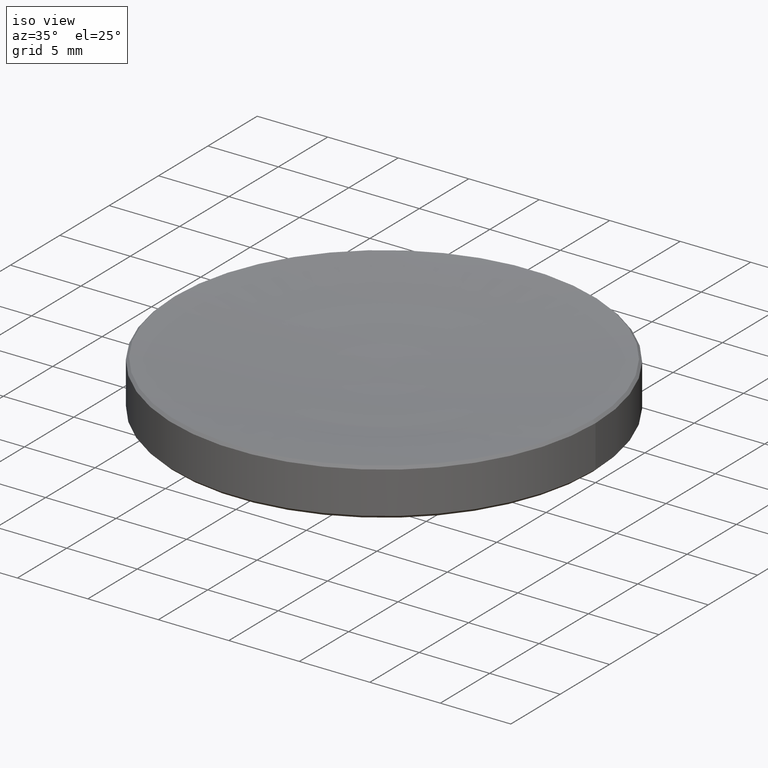
[diagram: clean part render]
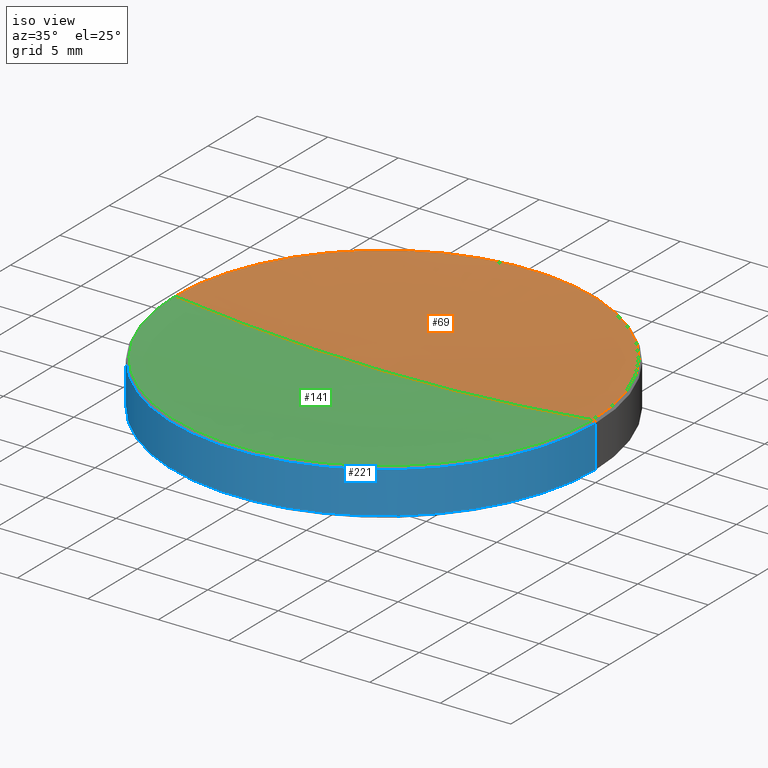
[diagram: same view with three faces highlighted in distinct colors, each labeled with its STEP entity id]
A machine part, iso view with three faces highlighted in distinct colors.
Their STEP definitions:

[orange] entity #69 — the highlighted toroidal blend (fillet) surface has major radius 0.0293 mm and minor (blend) radius 129.24 mm.
#4 = DIRECTION ( 'NONE',  ( 1.000000000000000000, 0.000000000000000000, 0.000000000000000000 ) ) ;
#8 = AXIS2_PLACEMENT_3D ( 'NONE', #202, #140, #247 ) ;
#11 = CARTESIAN_POINT ( 'NONE',  ( 0.000000000000000000, 0.000000000000000000, 2.500000000000000000 ) ) ;
#15 = FACE_OUTER_BOUND ( 'NONE', #180, .T. ) ;
#25 = AXIS2_PLACEMENT_3D ( 'NONE', #94, #134, #198 ) ;
#27 = EDGE_CURVE ( 'NONE', #33, #106, #215, .T. ) ;
#32 = DIRECTION ( 'NONE',  ( 0.000000000000000000, -1.000000000000000000, 0.000000000000000000 ) ) ;
#33 = VERTEX_POINT ( 'NONE', #11 ) ;
#49 = EDGE_CURVE ( 'NONE', #106, #146, #115, .T. ) ;
#53 = CARTESIAN_POINT ( 'NONE',  ( 0.000000000000000000, 0.000000000000000000, 3.349225289148161089 ) ) ;
#67 = ORIENTED_EDGE ( 'NONE', *, *, #49, .T. ) ;
#69 = ADVANCED_FACE ( 'NONE', ( #15 ), #112, .F. ) ;
#72 = AXIS2_PLACEMENT_3D ( 'NONE', #53, #124, #4 ) ;
#81 = AXIS2_PLACEMENT_3D ( 'NONE', #103, #32, #193 ) ;
#94 = CARTESIAN_POINT ( 'NONE',  ( 0.000000000000000000, 0.000000000000000000, 131.7399966763873351 ) ) ;
#103 = CARTESIAN_POINT ( 'NONE',  ( 0.02931019276951590119, 0.000000000000000000, 131.7399966763873351 ) ) ;
#106 = VERTEX_POINT ( 'NONE', #264 ) ;
#110 = ORIENTED_EDGE ( 'NONE', *, *, #203, .F. ) ;
#112 = TOROIDAL_SURFACE ( 'NONE', #25, 0.02931019276951590119, 129.2400000000000091 ) ;
#115 = CIRCLE ( 'NONE', #72, 14.82077471085190723 ) ;
#124 = DIRECTION ( 'NONE',  ( -0.000000000000000000, -0.000000000000000000, 1.000000000000000000 ) ) ;
#134 = DIRECTION ( 'NONE',  ( -0.000000000000000000, -0.000000000000000000, 1.000000000000000000 ) ) ;
#140 = DIRECTION ( 'NONE',  ( 1.224646799147353207E-16, 1.000000000000000000, 0.000000000000000000 ) ) ;
#146 = VERTEX_POINT ( 'NONE', #149 ) ;
#148 = CIRCLE ( 'NONE', #8, 129.2400000000000091 ) ;
#149 = CARTESIAN_POINT ( 'NONE',  ( -14.82077471085196940, 1.815021431052890477E-15, 3.349225289148161089 ) ) ;
#180 = EDGE_LOOP ( 'NONE', ( #110, #189, #67 ) ) ;
#189 = ORIENTED_EDGE ( 'NONE', *, *, #27, .T. ) ;
#193 = DIRECTION ( 'NONE',  ( 0.000000000000000000, 0.000000000000000000, -1.000000000000000000 ) ) ;
#198 = DIRECTION ( 'NONE',  ( 1.000000000000000000, 0.000000000000000000, 0.000000000000000000 ) ) ;
#202 = CARTESIAN_POINT ( 'NONE',  ( -0.02931019276951590119, 3.589463375757954364E-18, 131.7399966763873351 ) ) ;
#203 = EDGE_CURVE ( 'NONE', #33, #146, #148, .T. ) ;
#215 = CIRCLE ( 'NONE', #81, 129.2400000000000091 ) ;
#247 = DIRECTION ( 'NONE',  ( -1.000000000000000000, 1.224646799147353454E-16, 0.000000000000000000 ) ) ;
#264 = CARTESIAN_POINT ( 'NONE',  ( 14.82077471085196940, 0.000000000000000000, 3.349225289148161089 ) ) ;

[blue] entity #221 — the highlighted cylindrical surface (partial cylindrical patch) has radius 15 mm, axis along (-0, -0, 1).
#2 = FACE_OUTER_BOUND ( 'NONE', #28, .T. ) ;
#7 = VECTOR ( 'NONE', #16, 1000.000000000000000 ) ;
#14 = EDGE_CURVE ( 'NONE', #212, #30, #233, .T. ) ;
#16 = DIRECTION ( 'NONE',  ( -0.000000000000000000, -0.000000000000000000, 1.000000000000000000 ) ) ;
#19 = LINE ( 'NONE', #39, #262 ) ;
#28 = EDGE_LOOP ( 'NONE', ( #143, #46, #105, #232 ) ) ;
#30 = VERTEX_POINT ( 'NONE', #129 ) ;
#34 = CARTESIAN_POINT ( 'NONE',  ( 0.000000000000000000, 0.000000000000000000, 3.170000000000006146 ) ) ;
#39 = CARTESIAN_POINT ( 'NONE',  ( 15.00000000000000000, 0.000000000000000000, 2.500000000000000000 ) ) ;
#46 = ORIENTED_EDGE ( 'NONE', *, *, #14, .T. ) ;
#50 = DIRECTION ( 'NONE',  ( 1.000000000000000000, 0.000000000000000000, 0.000000000000000000 ) ) ;
#51 = AXIS2_PLACEMENT_3D ( 'NONE', #34, #219, #220 ) ;
#61 = DIRECTION ( 'NONE',  ( -0.000000000000000000, -0.000000000000000000, 1.000000000000000000 ) ) ;
#62 = EDGE_CURVE ( 'NONE', #212, #171, #96, .T. ) ;
#64 = CARTESIAN_POINT ( 'NONE',  ( 0.000000000000000000, 0.000000000000000000, 2.500000000000000000 ) ) ;
#83 = CARTESIAN_POINT ( 'NONE',  ( -15.00000000000000000, 1.836970198721029589E-15, 3.170000000000006146 ) ) ;
#84 = CYLINDRICAL_SURFACE ( 'NONE', #161, 15.00000000000000000 ) ;
#95 = CIRCLE ( 'NONE', #51, 15.00000000000000000 ) ;
#96 = LINE ( 'NONE', #263, #7 ) ;
#100 = CARTESIAN_POINT ( 'NONE',  ( -15.00000000000000000, 1.836970198721029589E-15, 0.1999999999999996503 ) ) ;
#105 = ORIENTED_EDGE ( 'NONE', *, *, #252, .T. ) ;
#126 = VERTEX_POINT ( 'NONE', #241 ) ;
#129 = CARTESIAN_POINT ( 'NONE',  ( 15.00000000000000000, 0.000000000000000000, 0.1999999999999996503 ) ) ;
#135 = AXIS2_PLACEMENT_3D ( 'NONE', #236, #217, #50 ) ;
#143 = ORIENTED_EDGE ( 'NONE', *, *, #62, .F. ) ;
#151 = EDGE_CURVE ( 'NONE', #126, #171, #95, .T. ) ;
#161 = AXIS2_PLACEMENT_3D ( 'NONE', #64, #265, #182 ) ;
#171 = VERTEX_POINT ( 'NONE', #83 ) ;
#182 = DIRECTION ( 'NONE',  ( 1.000000000000000000, 0.000000000000000000, 0.000000000000000000 ) ) ;
#212 = VERTEX_POINT ( 'NONE', #100 ) ;
#217 = DIRECTION ( 'NONE',  ( -0.000000000000000000, -0.000000000000000000, 1.000000000000000000 ) ) ;
#219 = DIRECTION ( 'NONE',  ( 0.000000000000000000, 0.000000000000000000, -1.000000000000000000 ) ) ;
#220 = DIRECTION ( 'NONE',  ( -1.000000000000000000, 0.000000000000000000, 0.000000000000000000 ) ) ;
#221 = ADVANCED_FACE ( 'NONE', ( #2 ), #84, .T. ) ;
#232 = ORIENTED_EDGE ( 'NONE', *, *, #151, .T. ) ;
#233 = CIRCLE ( 'NONE', #135, 15.00000000000000000 ) ;
#236 = CARTESIAN_POINT ( 'NONE',  ( 0.000000000000000000, 0.000000000000000000, 0.1999999999999996503 ) ) ;
#241 = CARTESIAN_POINT ( 'NONE',  ( 15.00000000000000000, 0.000000000000000000, 3.170000000000006146 ) ) ;
#252 = EDGE_CURVE ( 'NONE', #30, #126, #19, .T. ) ;
#262 = VECTOR ( 'NONE', #61, 1000.000000000000000 ) ;
#263 = CARTESIAN_POINT ( 'NONE',  ( -15.00000000000000000, 1.836970198721029589E-15, 2.500000000000000000 ) ) ;
#265 = DIRECTION ( 'NONE',  ( -0.000000000000000000, -0.000000000000000000, 1.000000000000000000 ) ) ;

[green] entity #141 — the highlighted toroidal blend (fillet) surface has major radius 0.0293 mm and minor (blend) radius 129.24 mm.
#6 = ORIENTED_EDGE ( 'NONE', *, *, #203, .T. ) ;
#8 = AXIS2_PLACEMENT_3D ( 'NONE', #202, #140, #247 ) ;
#11 = CARTESIAN_POINT ( 'NONE',  ( 0.000000000000000000, 0.000000000000000000, 2.500000000000000000 ) ) ;
#27 = EDGE_CURVE ( 'NONE', #33, #106, #215, .T. ) ;
#29 = EDGE_LOOP ( 'NONE', ( #165, #6, #45 ) ) ;
#32 = DIRECTION ( 'NONE',  ( 0.000000000000000000, -1.000000000000000000, 0.000000000000000000 ) ) ;
#33 = VERTEX_POINT ( 'NONE', #11 ) ;
#37 = AXIS2_PLACEMENT_3D ( 'NONE', #256, #238, #74 ) ;
#41 = EDGE_CURVE ( 'NONE', #146, #106, #166, .T. ) ;
#45 = ORIENTED_EDGE ( 'NONE', *, *, #41, .T. ) ;
#55 = FACE_OUTER_BOUND ( 'NONE', #29, .T. ) ;
#74 = DIRECTION ( 'NONE',  ( 1.000000000000000000, 0.000000000000000000, 0.000000000000000000 ) ) ;
#81 = AXIS2_PLACEMENT_3D ( 'NONE', #103, #32, #193 ) ;
#103 = CARTESIAN_POINT ( 'NONE',  ( 0.02931019276951590119, 0.000000000000000000, 131.7399966763873351 ) ) ;
#106 = VERTEX_POINT ( 'NONE', #264 ) ;
#130 = CARTESIAN_POINT ( 'NONE',  ( 0.000000000000000000, 0.000000000000000000, 131.7399966763873351 ) ) ;
#133 = DIRECTION ( 'NONE',  ( -0.000000000000000000, -0.000000000000000000, 1.000000000000000000 ) ) ;
#137 = TOROIDAL_SURFACE ( 'NONE', #177, 0.02931019276951590119, 129.2400000000000091 ) ;
#140 = DIRECTION ( 'NONE',  ( 1.224646799147353207E-16, 1.000000000000000000, 0.000000000000000000 ) ) ;
#141 = ADVANCED_FACE ( 'NONE', ( #55 ), #137, .F. ) ;
#146 = VERTEX_POINT ( 'NONE', #149 ) ;
#148 = CIRCLE ( 'NONE', #8, 129.2400000000000091 ) ;
#149 = CARTESIAN_POINT ( 'NONE',  ( -14.82077471085196940, 1.815021431052890477E-15, 3.349225289148161089 ) ) ;
#165 = ORIENTED_EDGE ( 'NONE', *, *, #27, .F. ) ;
#166 = CIRCLE ( 'NONE', #37, 14.82077471085190723 ) ;
#177 = AXIS2_PLACEMENT_3D ( 'NONE', #130, #133, #218 ) ;
#193 = DIRECTION ( 'NONE',  ( 0.000000000000000000, 0.000000000000000000, -1.000000000000000000 ) ) ;
#202 = CARTESIAN_POINT ( 'NONE',  ( -0.02931019276951590119, 3.589463375757954364E-18, 131.7399966763873351 ) ) ;
#203 = EDGE_CURVE ( 'NONE', #33, #146, #148, .T. ) ;
#215 = CIRCLE ( 'NONE', #81, 129.2400000000000091 ) ;
#218 = DIRECTION ( 'NONE',  ( 1.000000000000000000, 0.000000000000000000, 0.000000000000000000 ) ) ;
#238 = DIRECTION ( 'NONE',  ( -0.000000000000000000, -0.000000000000000000, 1.000000000000000000 ) ) ;
#247 = DIRECTION ( 'NONE',  ( -1.000000000000000000, 1.224646799147353454E-16, 0.000000000000000000 ) ) ;
#256 = CARTESIAN_POINT ( 'NONE',  ( 0.000000000000000000, 0.000000000000000000, 3.349225289148161089 ) ) ;
#264 = CARTESIAN_POINT ( 'NONE',  ( 14.82077471085196940, 0.000000000000000000, 3.349225289148161089 ) ) ;